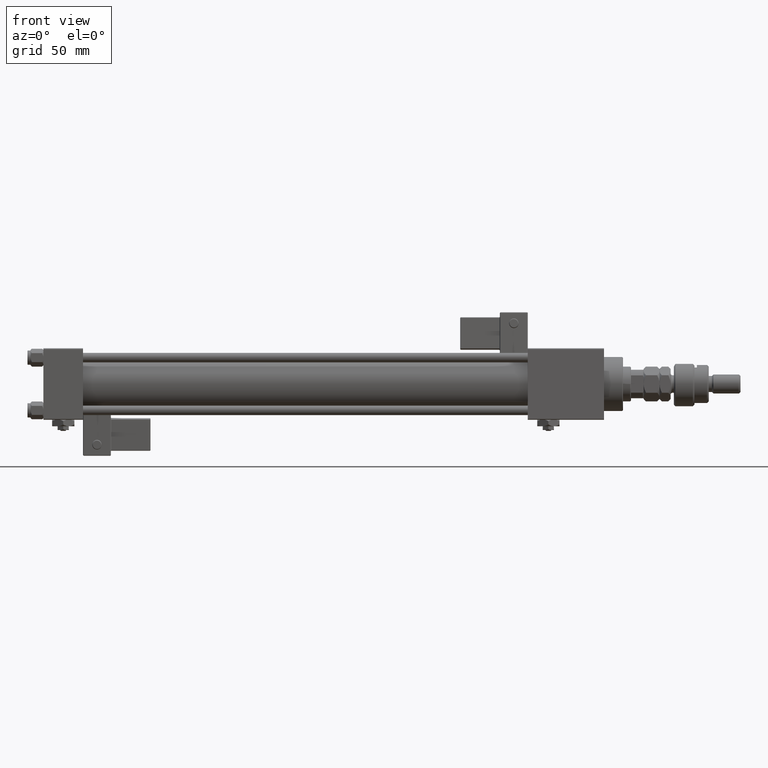
[diagram: clean part render]
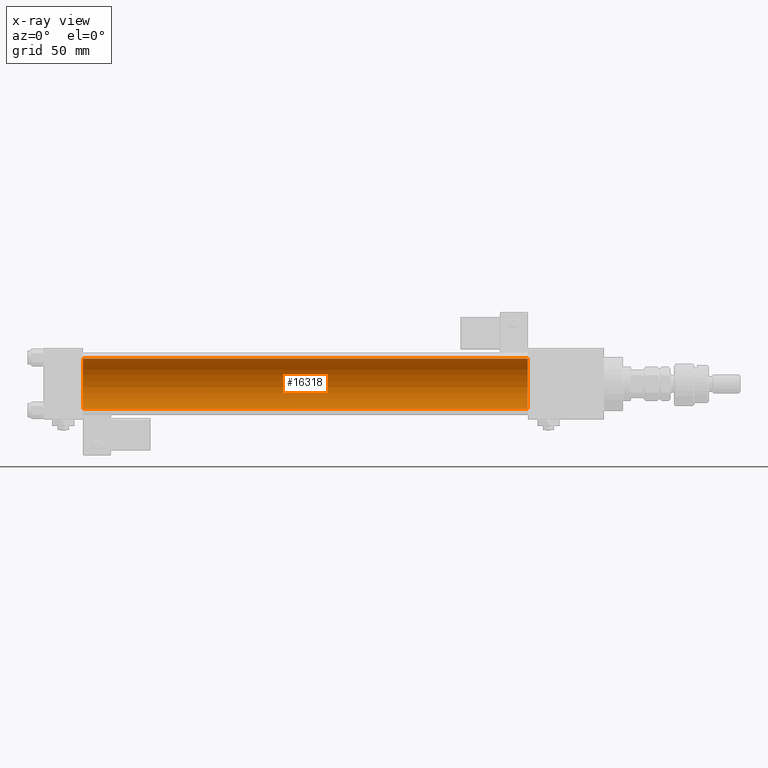
[diagram: x-ray — body ghosted, one internal face saturated and labeled with its STEP entity id]
A machine part, front view, then the same camera in x-ray: the body is ghosted and one INTERNAL B-rep face — a face not visible from any outside direction — is saturated and labeled: STEP entity #16318.
In plain terms, the highlighted cylindrical surface (edge-blend (fillet) strip) has radius 16 mm, axis along (-1, -0, -0).
Its self-contained STEP definition (entity closure, byte-faithful):
#59 = EDGE_CURVE ( 'NONE', #56599, #47666, #17969, .T. ) ;
#2447 = CARTESIAN_POINT ( 'NONE',  ( 305.0000000000000568, -6.426503353294456087E-16, -16.00000000000000000 ) ) ;
#4045 = VERTEX_POINT ( 'NONE', #8466 ) ;
#7475 = VECTOR ( 'NONE', #45603, 1000.000000000000000 ) ;
#8466 = CARTESIAN_POINT ( 'NONE',  ( 25.00000000000000000, -6.426503353294456087E-16, -16.00000000000000000 ) ) ;
#11763 = DIRECTION ( 'NONE',  ( 0.000000000000000000, 0.000000000000000000, -1.000000000000000000 ) ) ;
#11958 = AXIS2_PLACEMENT_3D ( 'NONE', #34239, #12160, #43240 ) ;
#12160 = DIRECTION ( 'NONE',  ( -1.000000000000000000, -0.000000000000000000, -0.000000000000000000 ) ) ;
#15441 = CARTESIAN_POINT ( 'NONE',  ( 305.0000000000000568, -6.426503353294456087E-16, -16.00000000000000000 ) ) ;
#16131 = DIRECTION ( 'NONE',  ( 1.000000000000000000, 0.000000000000000000, 0.000000000000000000 ) ) ;
#16318 = ADVANCED_FACE ( 'NONE', ( #42663 ), #38303, .F. ) ;
#17713 = CARTESIAN_POINT ( 'NONE',  ( 25.00000000000000000, -2.602085213965210642E-15, 16.00000000000000000 ) ) ;
#17969 = CIRCLE ( 'NONE', #19828, 16.00000000000000000 ) ;
#19828 = AXIS2_PLACEMENT_3D ( 'NONE', #55910, #16131, #11763 ) ;
#22659 = EDGE_LOOP ( 'NONE', ( #24380, #49603, #28399, #51809 ) ) ;
#24380 = ORIENTED_EDGE ( 'NONE', *, *, #57223, .F. ) ;
#24738 = DIRECTION ( 'NONE',  ( 0.000000000000000000, 0.000000000000000000, -1.000000000000000000 ) ) ;
#25082 = CIRCLE ( 'NONE', #39918, 16.00000000000000000 ) ;
#26922 = CARTESIAN_POINT ( 'NONE',  ( 305.0000000000000568, -2.602085213965210642E-15, 16.00000000000000000 ) ) ;
#27886 = LINE ( 'NONE', #31955, #7475 ) ;
#28399 = ORIENTED_EDGE ( 'NONE', *, *, #46027, .T. ) ;
#31955 = CARTESIAN_POINT ( 'NONE',  ( 305.0000000000000568, -2.602085213965210642E-15, 16.00000000000000000 ) ) ;
#33502 = LINE ( 'NONE', #2447, #51289 ) ;
#34239 = CARTESIAN_POINT ( 'NONE',  ( 305.0000000000000568, -2.602085213965210642E-15, 0.000000000000000000 ) ) ;
#37293 = DIRECTION ( 'NONE',  ( -1.000000000000000000, -0.000000000000000000, -0.000000000000000000 ) ) ;
#38303 = CYLINDRICAL_SURFACE ( 'NONE', #11958, 16.00000000000000000 ) ;
#39918 = AXIS2_PLACEMENT_3D ( 'NONE', #41581, #41860, #24738 ) ;
#41581 = CARTESIAN_POINT ( 'NONE',  ( 25.00000000000000000, -2.602085213965210642E-15, 0.000000000000000000 ) ) ;
#41860 = DIRECTION ( 'NONE',  ( 1.000000000000000000, 0.000000000000000000, 0.000000000000000000 ) ) ;
#42663 = FACE_OUTER_BOUND ( 'NONE', #22659, .T. ) ;
#43240 = DIRECTION ( 'NONE',  ( 0.000000000000000000, 0.000000000000000000, 1.000000000000000000 ) ) ;
#45603 = DIRECTION ( 'NONE',  ( -1.000000000000000000, -0.000000000000000000, -0.000000000000000000 ) ) ;
#46027 = EDGE_CURVE ( 'NONE', #47666, #51959, #27886, .T. ) ;
#47666 = VERTEX_POINT ( 'NONE', #26922 ) ;
#49603 = ORIENTED_EDGE ( 'NONE', *, *, #59, .T. ) ;
#49841 = EDGE_CURVE ( 'NONE', #4045, #51959, #25082, .T. ) ;
#51289 = VECTOR ( 'NONE', #37293, 1000.000000000000000 ) ;
#51809 = ORIENTED_EDGE ( 'NONE', *, *, #49841, .F. ) ;
#51959 = VERTEX_POINT ( 'NONE', #17713 ) ;
#55910 = CARTESIAN_POINT ( 'NONE',  ( 305.0000000000000568, -2.602085213965210642E-15, 0.000000000000000000 ) ) ;
#56599 = VERTEX_POINT ( 'NONE', #15441 ) ;
#57223 = EDGE_CURVE ( 'NONE', #56599, #4045, #33502, .T. ) ;